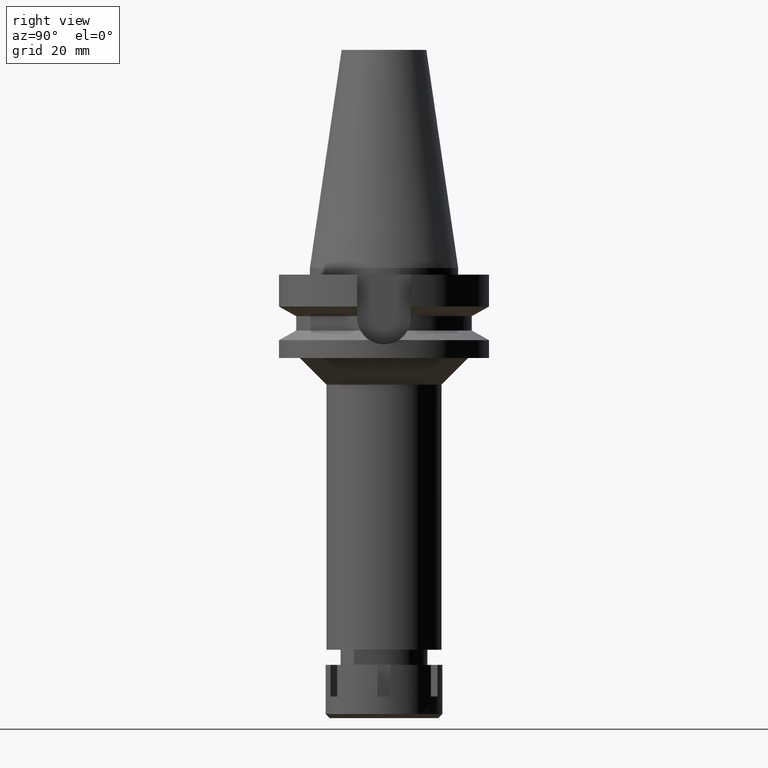
[diagram: clean part render]
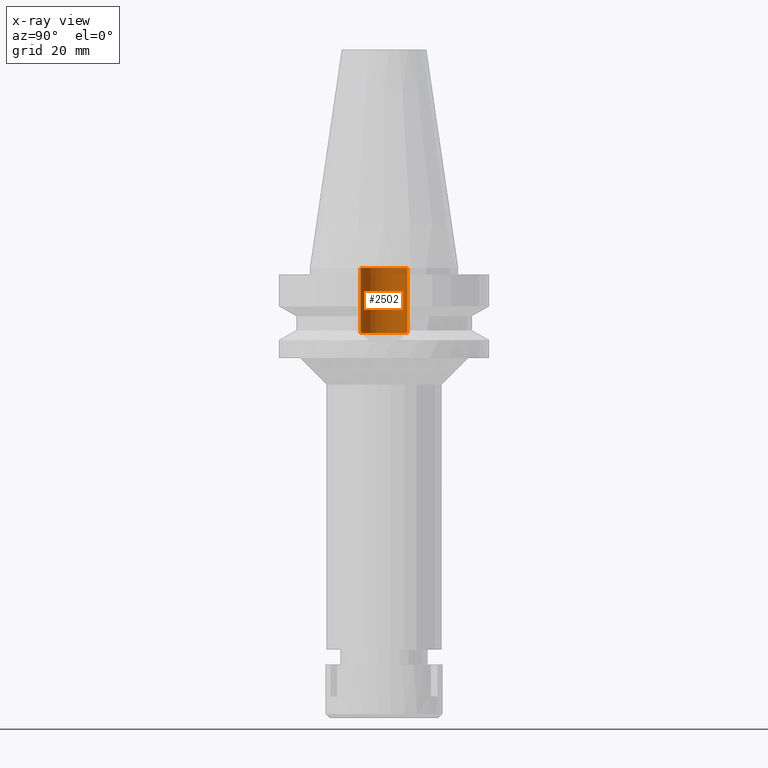
[diagram: x-ray — body ghosted, one internal face saturated and labeled with its STEP entity id]
A machine part, right view, then the same camera in x-ray: the body is ghosted and one INTERNAL B-rep face — a face not visible from any outside direction — is saturated and labeled: STEP entity #2502.
In plain terms, the highlighted cylindrical surface (edge-blend (fillet) strip) has radius 7.1 mm, axis along (0, 0, -1).
Its self-contained STEP definition (entity closure, byte-faithful):
#4 = CARTESIAN_POINT ( 'NONE',  ( 0.0000000000000000000, 7.100000000000000533, 0.0000000000000000000 ) ) ;
#110 = CIRCLE ( 'NONE', #1297, 7.100000000000000533 ) ;
#155 = VERTEX_POINT ( 'NONE', #370 ) ;
#188 = CARTESIAN_POINT ( 'NONE',  ( 0.0000000000000000000, -7.100000000000000533, -19.59999999999999787 ) ) ;
#370 = CARTESIAN_POINT ( 'NONE',  ( 0.0000000000000000000, 7.100000000000000533, -19.59999999999999787 ) ) ;
#449 = CARTESIAN_POINT ( 'NONE',  ( 0.0000000000000000000, 2.143376827867999896E-14, 0.0000000000000000000 ) ) ;
#477 = EDGE_LOOP ( 'NONE', ( #1930, #708, #2538, #3240 ) ) ;
#708 = ORIENTED_EDGE ( 'NONE', *, *, #2471, .F. ) ;
#792 = DIRECTION ( 'NONE',  ( 0.0000000000000000000, 0.0000000000000000000, -1.000000000000000000 ) ) ;
#815 = LINE ( 'NONE', #1914, #2197 ) ;
#850 = FACE_OUTER_BOUND ( 'NONE', #477, .T. ) ;
#918 = CARTESIAN_POINT ( 'NONE',  ( 0.0000000000000000000, -7.100000000000000533, 0.0000000000000000000 ) ) ;
#997 = DIRECTION ( 'NONE',  ( 0.0000000000000000000, -1.000000000000000000, 0.0000000000000000000 ) ) ;
#1058 = EDGE_CURVE ( 'NONE', #1955, #155, #110, .T. ) ;
#1138 = AXIS2_PLACEMENT_3D ( 'NONE', #3056, #792, #3350 ) ;
#1139 = EDGE_CURVE ( 'NONE', #2579, #3590, #1352, .T. ) ;
#1295 = DIRECTION ( 'NONE',  ( 0.0000000000000000000, 0.0000000000000000000, -1.000000000000000000 ) ) ;
#1297 = AXIS2_PLACEMENT_3D ( 'NONE', #2611, #2882, #997 ) ;
#1352 = CIRCLE ( 'NONE', #1810, 7.100000000000000533 ) ;
#1600 = LINE ( 'NONE', #188, #3465 ) ;
#1810 = AXIS2_PLACEMENT_3D ( 'NONE', #449, #1295, #2386 ) ;
#1914 = CARTESIAN_POINT ( 'NONE',  ( 0.0000000000000000000, 7.100000000000000533, -19.59999999999999787 ) ) ;
#1930 = ORIENTED_EDGE ( 'NONE', *, *, #1139, .F. ) ;
#1955 = VERTEX_POINT ( 'NONE', #3632 ) ;
#2197 = VECTOR ( 'NONE', #3042, 1000.000000000000000 ) ;
#2386 = DIRECTION ( 'NONE',  ( 0.0000000000000000000, -1.000000000000000000, 0.0000000000000000000 ) ) ;
#2450 = DIRECTION ( 'NONE',  ( 0.0000000000000000000, 0.0000000000000000000, 1.000000000000000000 ) ) ;
#2471 = EDGE_CURVE ( 'NONE', #1955, #2579, #1600, .T. ) ;
#2502 = ADVANCED_FACE ( 'NONE', ( #850 ), #3010, .F. ) ;
#2538 = ORIENTED_EDGE ( 'NONE', *, *, #1058, .T. ) ;
#2579 = VERTEX_POINT ( 'NONE', #918 ) ;
#2611 = CARTESIAN_POINT ( 'NONE',  ( 0.0000000000000000000, 2.143376827867999896E-14, -19.59999999999999787 ) ) ;
#2882 = DIRECTION ( 'NONE',  ( 0.0000000000000000000, 0.0000000000000000000, -1.000000000000000000 ) ) ;
#3010 = CYLINDRICAL_SURFACE ( 'NONE', #1138, 7.100000000000000533 ) ;
#3042 = DIRECTION ( 'NONE',  ( 0.0000000000000000000, 0.0000000000000000000, 1.000000000000000000 ) ) ;
#3056 = CARTESIAN_POINT ( 'NONE',  ( 0.0000000000000000000, 2.143376827867999896E-14, 75.02000000000001023 ) ) ;
#3240 = ORIENTED_EDGE ( 'NONE', *, *, #3636, .T. ) ;
#3350 = DIRECTION ( 'NONE',  ( 0.0000000000000000000, -1.000000000000000000, 0.0000000000000000000 ) ) ;
#3465 = VECTOR ( 'NONE', #2450, 1000.000000000000000 ) ;
#3590 = VERTEX_POINT ( 'NONE', #4 ) ;
#3632 = CARTESIAN_POINT ( 'NONE',  ( 0.0000000000000000000, -7.100000000000000533, -19.59999999999999787 ) ) ;
#3636 = EDGE_CURVE ( 'NONE', #155, #3590, #815, .T. ) ;